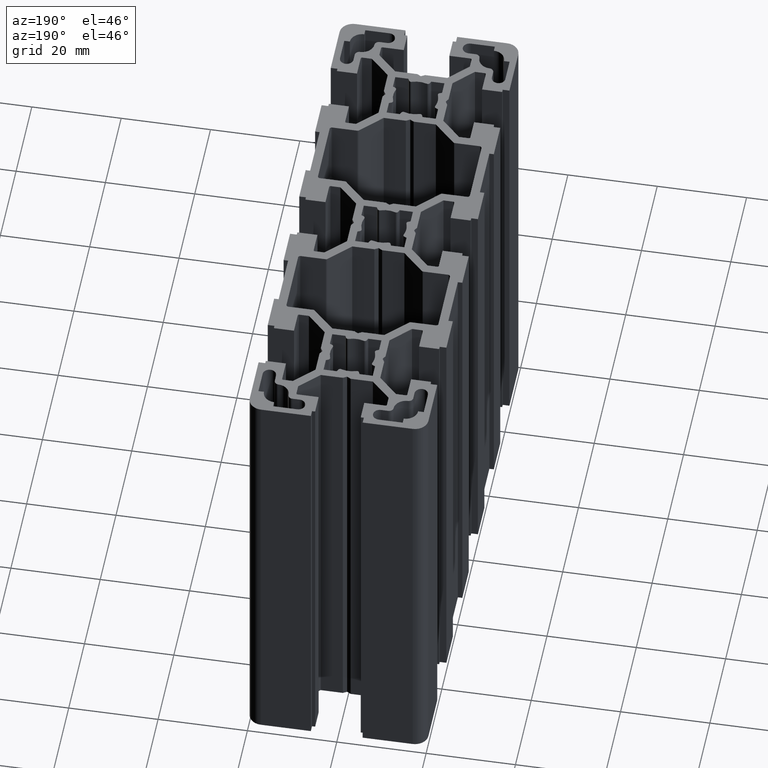
[diagram: clean part render]
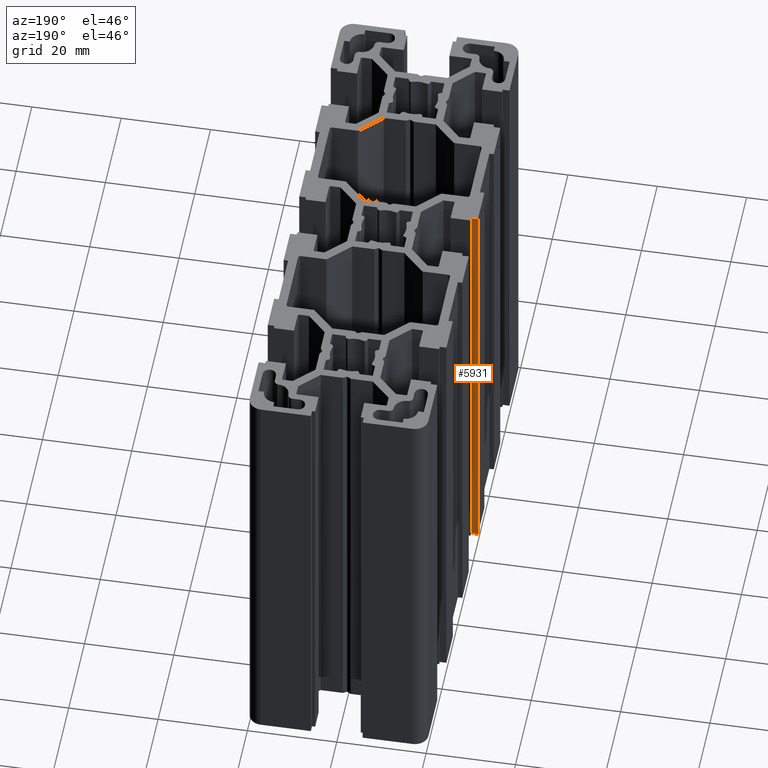
[diagram: same view with one face highlighted and labeled with its STEP entity id]
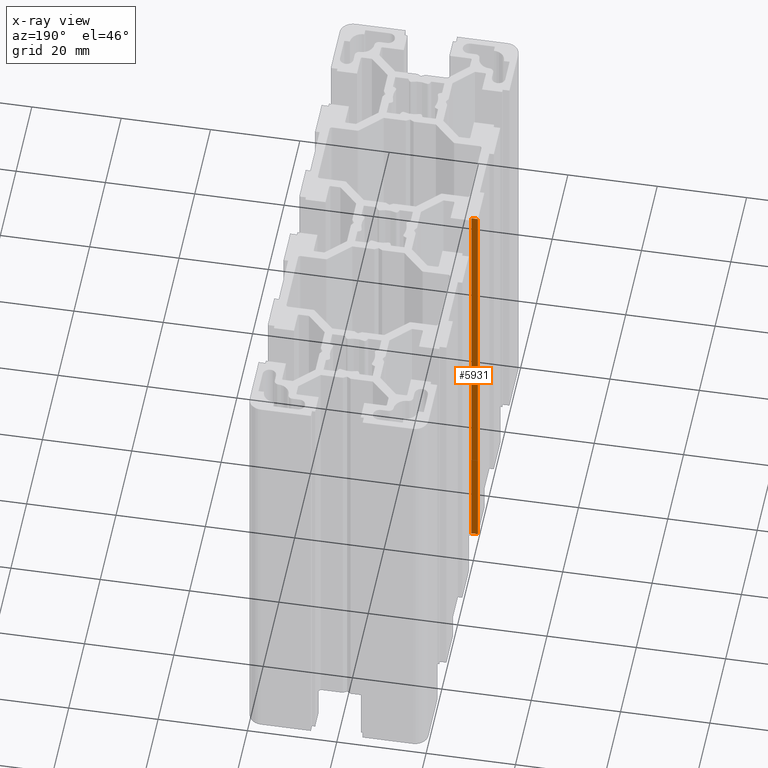
[diagram: x-ray of the same camera — body ghosted, the highlighted face saturated]
A machine part, auxiliary view. The second image highlights one B-rep face of the part: STEP entity #5931.
The next image is the same camera in x-ray: the body ghosted, the highlighted face saturated — about 0% of this face is hidden behind the body in this view.
In plain terms, the highlighted planar face has unit normal (0, -1, 0).
Its self-contained STEP definition (entity closure, byte-faithful):
#4019 = VERTEX_POINT ( 'NONE', #8637 ) ;
#4028 = EDGE_CURVE ( 'NONE', #4019, #4034, #8671, .T. ) ;
#4034 = VERTEX_POINT ( 'NONE', #8658 ) ;
#5055 = VERTEX_POINT ( 'NONE', #10444 ) ;
#5096 = EDGE_CURVE ( 'NONE', #5055, #5113, #10542, .T. ) ;
#5113 = VERTEX_POINT ( 'NONE', #10581 ) ;
#5930 = ORIENTED_EDGE ( 'NONE', *, *, #5940, .F. ) ;
#5931 = ADVANCED_FACE ( 'NONE', ( #11950 ), #11943, .F. ) ;
#5932 = ORIENTED_EDGE ( 'NONE', *, *, #5096, .T. ) ;
#5933 = ORIENTED_EDGE ( 'NONE', *, *, #5943, .T. ) ;
#5934 = ORIENTED_EDGE ( 'NONE', *, *, #4028, .F. ) ;
#5939 = EDGE_LOOP ( 'NONE', ( #5932, #5930, #5934, #5933 ) ) ;
#5940 = EDGE_CURVE ( 'NONE', #4034, #5113, #11978, .T. ) ;
#5943 = EDGE_CURVE ( 'NONE', #4019, #5055, #11932, .T. ) ;
#8636 = CARTESIAN_POINT ( 'NONE',  ( -18.50000000000000000, -5.799998283386251800, 100.0000000000000000 ) ) ;
#8637 = CARTESIAN_POINT ( 'NONE',  ( -18.50000000000000000, -5.799998283386251800, 100.0000000000000000 ) ) ;
#8646 = VECTOR ( 'NONE', #8670, 1000.000000000000100 ) ;
#8658 = CARTESIAN_POINT ( 'NONE',  ( -20.00000000000000000, -5.800000190734863300, 100.0000000000000000 ) ) ;
#8670 = DIRECTION ( 'NONE',  ( -0.9999999999991915400, -1.271565741010327200E-006, 0.0000000000000000000 ) ) ;
#8671 = LINE ( 'NONE', #8636, #8646 ) ;
#10444 = CARTESIAN_POINT ( 'NONE',  ( -18.50000000000000000, -5.799998283386251800, 0.0000000000000000000 ) ) ;
#10539 = DIRECTION ( 'NONE',  ( -0.9999999999991915400, -1.271565741010327200E-006, 0.0000000000000000000 ) ) ;
#10540 = VECTOR ( 'NONE', #10539, 1000.000000000000100 ) ;
#10541 = CARTESIAN_POINT ( 'NONE',  ( -18.50000000000000000, -5.799998283386251800, 0.0000000000000000000 ) ) ;
#10542 = LINE ( 'NONE', #10541, #10540 ) ;
#10581 = CARTESIAN_POINT ( 'NONE',  ( -20.00000000000000000, -5.800000190734863300, 0.0000000000000000000 ) ) ;
#11932 = LINE ( 'NONE', #11972, #11971 ) ;
#11933 = DIRECTION ( 'NONE',  ( 0.9999999999991915400, 1.271565741010327200E-006, 0.0000000000000000000 ) ) ;
#11934 = DIRECTION ( 'NONE',  ( 1.271565741010327200E-006, -0.9999999999991915400, 0.0000000000000000000 ) ) ;
#11935 = CARTESIAN_POINT ( 'NONE',  ( -18.50000000000000000, -5.799998283386251800, 100.0000000000000000 ) ) ;
#11943 = PLANE ( 'NONE',  #11949 ) ;
#11949 = AXIS2_PLACEMENT_3D ( 'NONE', #11935, #11934, #11933 ) ;
#11950 = FACE_OUTER_BOUND ( 'NONE', #5939, .T. ) ;
#11970 = DIRECTION ( 'NONE',  ( -0.0000000000000000000, -0.0000000000000000000, -1.000000000000000000 ) ) ;
#11971 = VECTOR ( 'NONE', #11970, 1000.000000000000000 ) ;
#11972 = CARTESIAN_POINT ( 'NONE',  ( -18.50000000000000000, -5.799998283386251800, 100.0000000000000000 ) ) ;
#11975 = DIRECTION ( 'NONE',  ( -0.0000000000000000000, -0.0000000000000000000, -1.000000000000000000 ) ) ;
#11976 = VECTOR ( 'NONE', #11975, 1000.000000000000000 ) ;
#11977 = CARTESIAN_POINT ( 'NONE',  ( -20.00000000000000000, -5.800000190734863300, 100.0000000000000000 ) ) ;
#11978 = LINE ( 'NONE', #11977, #11976 ) ;